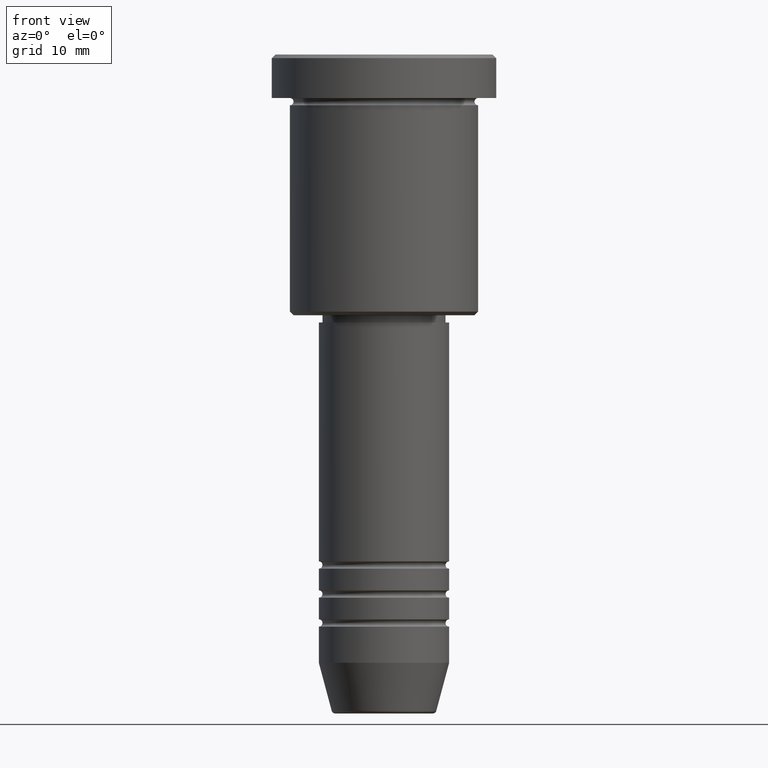
[diagram: clean part render]
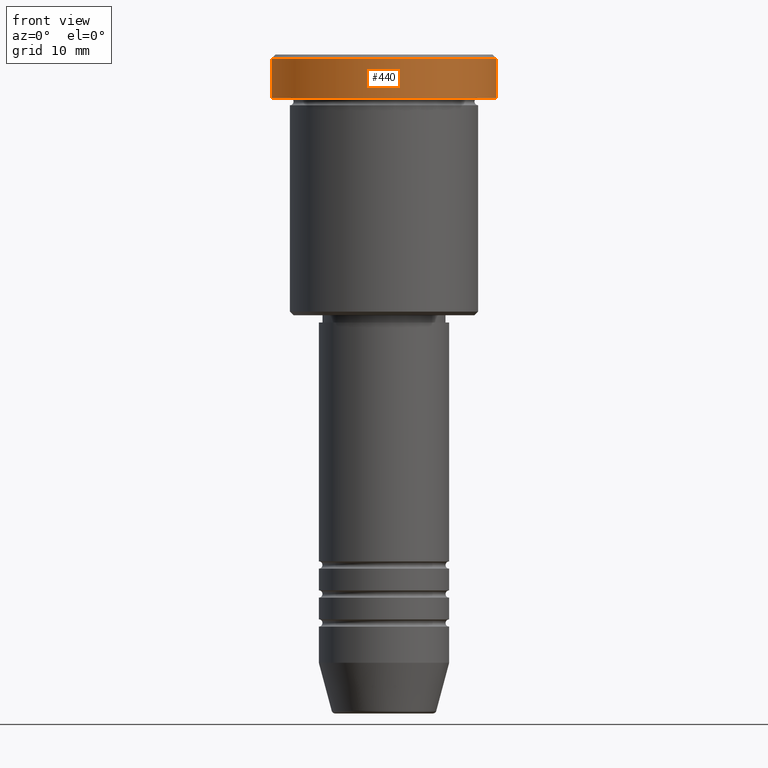
[diagram: same view with one face highlighted and labeled with its STEP entity id]
A machine part, front view. The second image highlights one B-rep face of the part: STEP entity #440.
In plain terms, the highlighted cylindrical surface (partial cylindrical patch) has radius 15.5 mm, axis along (-0, -0, 1).
Its self-contained STEP definition (entity closure, byte-faithful):
#2 = CIRCLE ( 'NONE', #162, 15.50000000000000000 ) ;
#35 = EDGE_LOOP ( 'NONE', ( #743, #1114, #613, #59 ) ) ;
#55 = LINE ( 'NONE', #779, #368 ) ;
#59 = ORIENTED_EDGE ( 'NONE', *, *, #185, .T. ) ;
#153 = CARTESIAN_POINT ( 'NONE',  ( 0.000000000000000000, 0.000000000000000000, 0.000000000000000000 ) ) ;
#162 = AXIS2_PLACEMENT_3D ( 'NONE', #698, #523, #882 ) ;
#185 = EDGE_CURVE ( 'NONE', #961, #324, #797, .T. ) ;
#211 = FACE_OUTER_BOUND ( 'NONE', #35, .T. ) ;
#212 = VERTEX_POINT ( 'NONE', #1179 ) ;
#227 = LINE ( 'NONE', #509, #348 ) ;
#229 = DIRECTION ( 'NONE',  ( 1.000000000000000000, 0.000000000000000000, 0.000000000000000000 ) ) ;
#314 = CYLINDRICAL_SURFACE ( 'NONE', #439, 15.50000000000000000 ) ;
#324 = VERTEX_POINT ( 'NONE', #675 ) ;
#331 = DIRECTION ( 'NONE',  ( -0.000000000000000000, -0.000000000000000000, 1.000000000000000000 ) ) ;
#333 = DIRECTION ( 'NONE',  ( -0.000000000000000000, -0.000000000000000000, 1.000000000000000000 ) ) ;
#348 = VECTOR ( 'NONE', #921, 1000.000000000000000 ) ;
#368 = VECTOR ( 'NONE', #331, 1000.000000000000000 ) ;
#439 = AXIS2_PLACEMENT_3D ( 'NONE', #153, #333, #229 ) ;
#440 = ADVANCED_FACE ( 'NONE', ( #211 ), #314, .T. ) ;
#448 = DIRECTION ( 'NONE',  ( 1.000000000000000000, 0.000000000000000000, 0.000000000000000000 ) ) ;
#452 = CARTESIAN_POINT ( 'NONE',  ( 0.000000000000000000, 0.000000000000000000, -0.4999999999999987232 ) ) ;
#509 = CARTESIAN_POINT ( 'NONE',  ( -15.50000000000000000, 1.898202538678397557E-15, 0.000000000000000000 ) ) ;
#523 = DIRECTION ( 'NONE',  ( -0.000000000000000000, -0.000000000000000000, 1.000000000000000000 ) ) ;
#550 = EDGE_CURVE ( 'NONE', #212, #324, #227, .T. ) ;
#613 = ORIENTED_EDGE ( 'NONE', *, *, #948, .T. ) ;
#675 = CARTESIAN_POINT ( 'NONE',  ( -15.50000000000000000, 1.898202538678397557E-15, -0.4999999999999987232 ) ) ;
#693 = CARTESIAN_POINT ( 'NONE',  ( 15.50000000000000000, 0.000000000000000000, -0.4999999999999987232 ) ) ;
#698 = CARTESIAN_POINT ( 'NONE',  ( 0.000000000000000000, 0.000000000000000000, -5.999999999999995559 ) ) ;
#743 = ORIENTED_EDGE ( 'NONE', *, *, #550, .F. ) ;
#779 = CARTESIAN_POINT ( 'NONE',  ( 15.50000000000000000, 0.000000000000000000, 0.000000000000000000 ) ) ;
#797 = CIRCLE ( 'NONE', #1070, 15.50000000000000000 ) ;
#874 = CARTESIAN_POINT ( 'NONE',  ( 15.50000000000000000, 0.000000000000000000, -5.999999999999995559 ) ) ;
#882 = DIRECTION ( 'NONE',  ( 1.000000000000000000, 0.000000000000000000, 0.000000000000000000 ) ) ;
#921 = DIRECTION ( 'NONE',  ( -0.000000000000000000, -0.000000000000000000, 1.000000000000000000 ) ) ;
#948 = EDGE_CURVE ( 'NONE', #957, #961, #55, .T. ) ;
#957 = VERTEX_POINT ( 'NONE', #874 ) ;
#961 = VERTEX_POINT ( 'NONE', #693 ) ;
#1070 = AXIS2_PLACEMENT_3D ( 'NONE', #452, #1100, #448 ) ;
#1099 = EDGE_CURVE ( 'NONE', #212, #957, #2, .T. ) ;
#1100 = DIRECTION ( 'NONE',  ( 0.000000000000000000, 0.000000000000000000, -1.000000000000000000 ) ) ;
#1114 = ORIENTED_EDGE ( 'NONE', *, *, #1099, .T. ) ;
#1179 = CARTESIAN_POINT ( 'NONE',  ( -15.50000000000000000, 1.898202538678397557E-15, -5.999999999999995559 ) ) ;